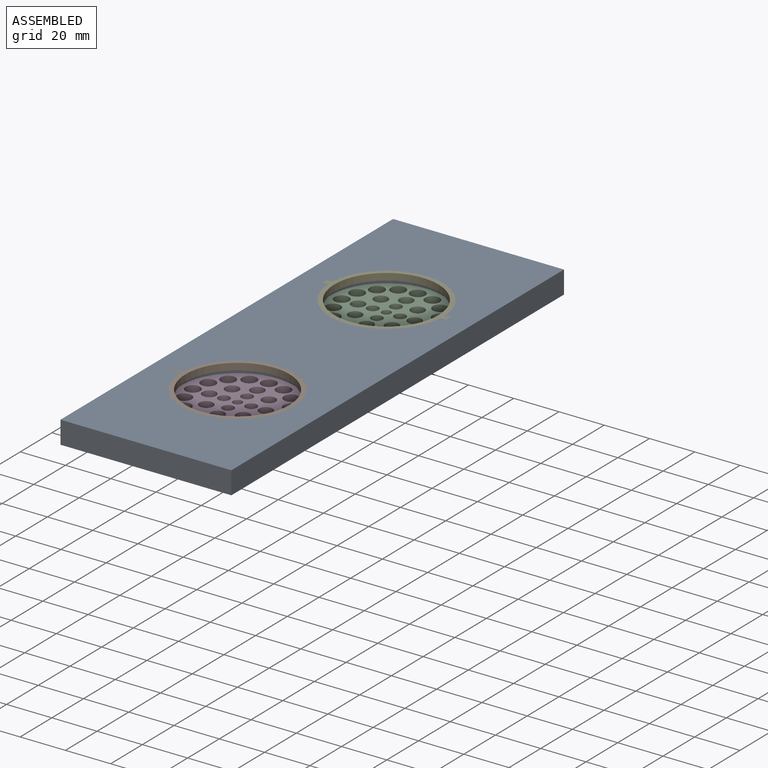
[diagram: assembled view]
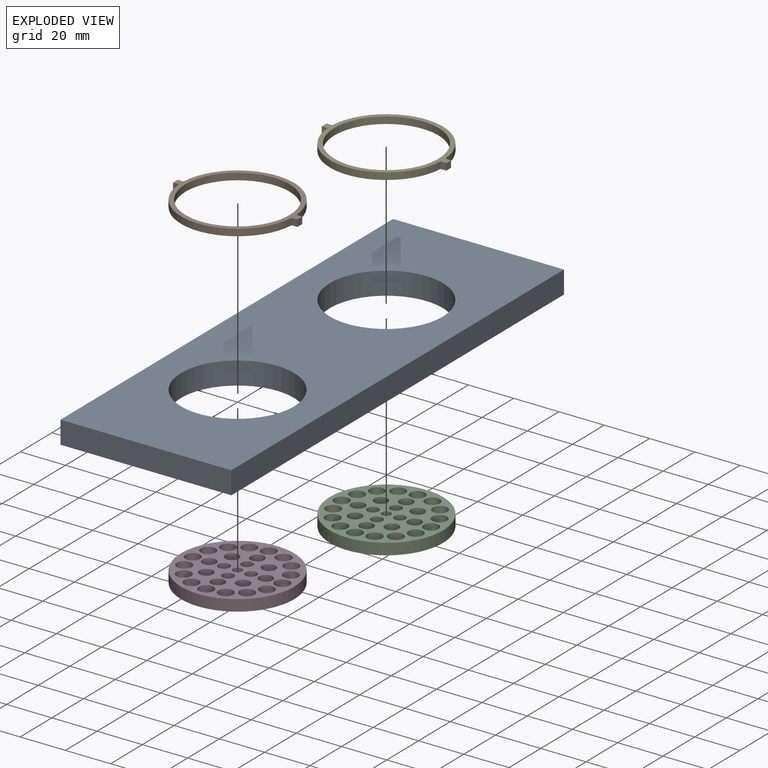
[diagram: exploded view]
GUIDED TOUR — MATED ASSEMBLY (Onshape document 9141ec784afdaae85d738d30, AutoMate assembly 9141ec784afdaae85d738d30_899313a670194cf381c82373_c76228d51991e67c0eaed0d9_default)

This assembly has 5 components, labeled P0..P4 below (a component is one placed occurrence of a part; the same part can appear more than once), held together by 2 mates. A mate is a constraint between two components; its type names the relative motion it leaves free:
  CYLINDRICAL — leaves both rotation about and translation along the listed axis free,
  FASTENED — locks the two components together rigidly (no relative motion).
Axis/direction vectors are unit vectors and 'through' points are millimeter coordinates, both in the assembly's world frame.

MATES
  1. CYLINDRICAL "Cylindrical 2": P3 <-> P0, axis (0.000, 0.000, -1.000) through (-170.78, 4.06, 86.99) mm
  2. FASTENED "Fastened 1": P0 <-> P2, direction (0.000, 0.000, -1.000) through (-170.78, 97.98, 86.99) mm

ASSEMBLY ORDER
  1. P0 — the base component [order heuristic]
  2. P2 — core [order heuristic]
  3. P3 — core [order heuristic]
  4. P4 [order verified]
  5. P1 [order verified]
(P1, P4 verified with a relaxed clearance tolerance: the source model stores slight part interference there.)
Order-tag legend:
  [order verified] — this step's position reverses a verified removal order: the component was checked to insert without passing through the ones already placed.
  [order heuristic] — the first 3 components form the assembly's core: parts whose collision-free extraction could not be verified, listed in mate-graph order.

Of the 5 components, 5 carry the full construction recipe — the FeatureScript program that regenerates the part's solid from scratch; the rest are supplied as boundary geometry only.
Each toured component is shown spotlighted twice — in the assembled view, then in the exploded view, where a leader line traces a displaced component back to its assembled socket (saturated green if recipe-attached, orange if geometry-only; every other component desaturated gray) — followed by its recipe or geometry summary and the mates that hold it.
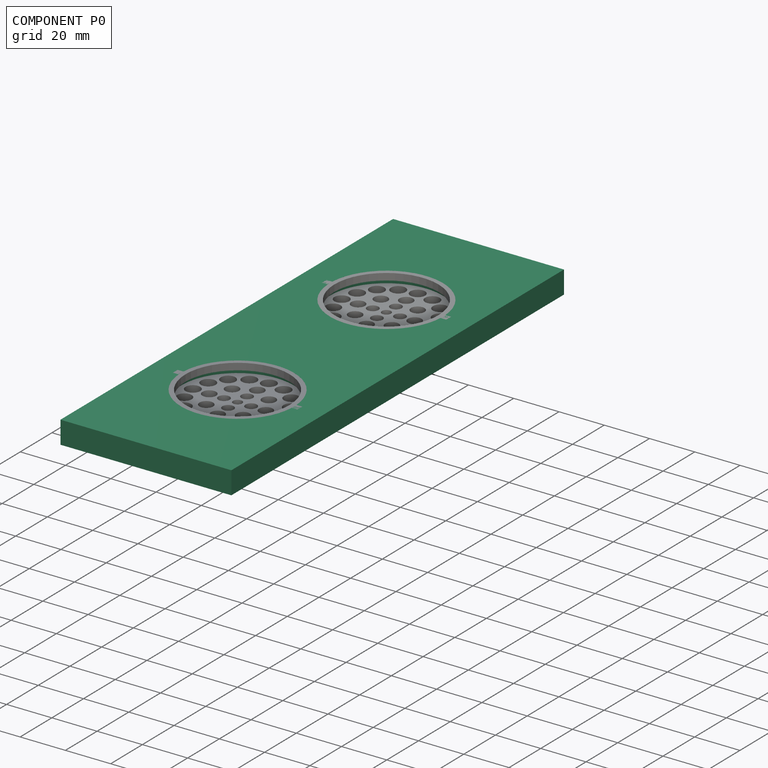
[diagram: component P0 — assembled]
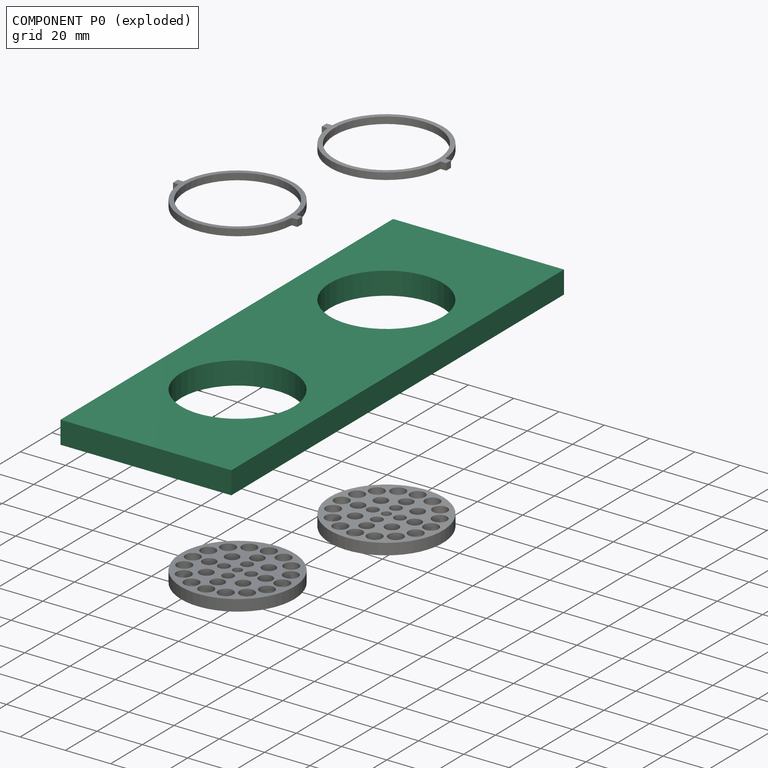
[diagram: component P0 — exploded]
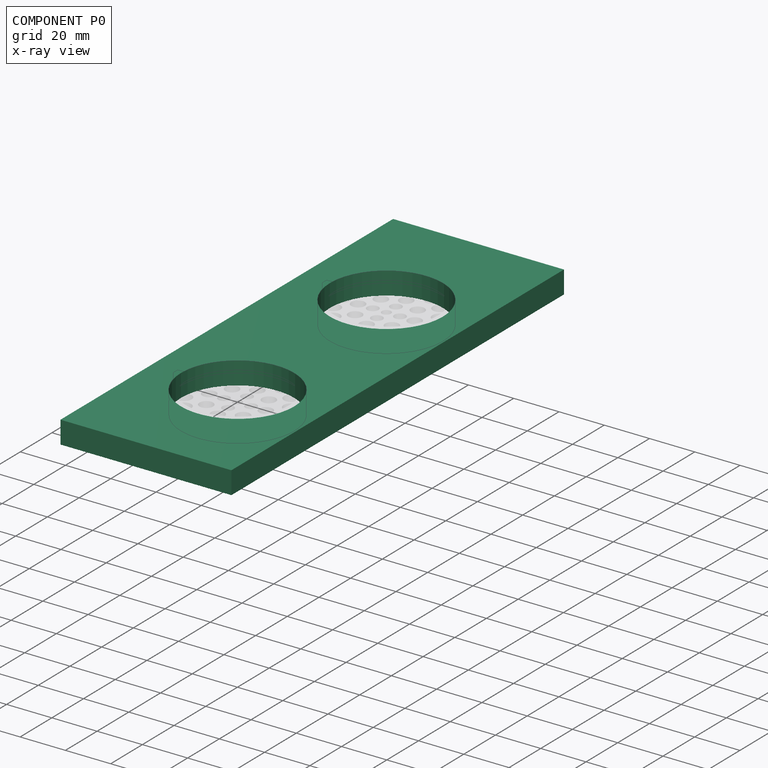
[diagram: component P0 — x-ray view]
COMPONENT P0 — recipe-attached (CADFS 00136937, mesh-verified: the recipe's output STEP matches this component's geometry to below the mesh-comparison resolution (tessellation chordal tolerance ~0.335 mm)).
Held by: CYLINDRICAL mate "Cylindrical 2" to P3; FASTENED mate "Fastened 1" to P2.
Construction recipe (FeatureScript — the CAD program that rebuilds this solid; sketch coordinates are in the units given by the * unit suffixes, e.g. mm):

FeatureScript 1511;
import(path : "onshape/std/geometry.fs", version : "1511.0");
import(path : "onshape/std/common.fs", version : "1511.0");
const mm = millimeter;
const VERTEX = EntityType.VERTEX;
const EDGE = EntityType.EDGE;
const FACE = EntityType.FACE;
const BODY = EntityType.BODY;
function v(x, y){return vector(x, y);}
function OD(order){return orderDisambiguation(order);}
function OSD(set){return originalSetDisambiguation(set);}
function TD(topology){return topologyDisambiguation(topology);}
function TDD(query){return trueDependencyDisambiguation(query);}
function sQuery(a, b, c) {return sketchEntityQuery(a, b, c);}

annotation { "Feature Type Name" : "Feature", "Feature Type Description" : "" }
export const myFeature = defineFeature(function(context is Context, id is Id, definition is map)
    precondition{}
    {
        {
            var Q0;
            Q0=qCreatedBy(makeId("Top.planeOp"),FACE);
            var sketch = newSketch(context, id + "F0", { "sketchPlane" : qUnion([Q0])});
            skLineSegment(sketch, "E0.bottom", {"start": v(37.75, -104.94) * mm, "end": v(-37.75, -104.94) * mm});
            skLineSegment(sketch, "E0.top", {"start": v(37.75, 104.94) * mm, "end": v(-37.75, 104.94) * mm});
            skLineSegment(sketch, "E0.left", {"start": v(37.75, -104.94) * mm, "end": v(37.75, 104.94) * mm});
            skLineSegment(sketch, "E0.right", {"start": v(-37.75, -104.94) * mm, "end": v(-37.75, 104.94) * mm});
            skPoint(sketch, "E0.middle", {"position": v(0, 0) * mm});
            skCircle(sketch, "E1", {"center": v(0, 46.82) * mm, "radius": 25 * mm});
            skCircle(sketch, "E2", {"center": v(0, -47.1) * mm, "radius": 25 * mm});
            skLineSegment(sketch, "E3.bottom", {"start": v(27.5, 45.32) * mm, "end": v(-27.5, 45.32) * mm});
            skLineSegment(sketch, "E3.top", {"start": v(27.5, 48.32) * mm, "end": v(-27.5, 48.32) * mm});
            skLineSegment(sketch, "E3.left", {"start": v(27.5, 45.32) * mm, "end": v(27.5, 48.32) * mm});
            skLineSegment(sketch, "E3.right", {"start": v(-27.5, 45.32) * mm, "end": v(-27.5, 48.32) * mm});
            skLineSegment(sketch, "E4.bottom", {"start": v(27.5, -48.6) * mm, "end": v(-27.5, -48.6) * mm});
            skLineSegment(sketch, "E4.top", {"start": v(27.5, -45.6) * mm, "end": v(-27.5, -45.6) * mm});
            skLineSegment(sketch, "E4.left", {"start": v(27.5, -48.6) * mm, "end": v(27.5, -45.6) * mm});
            skLineSegment(sketch, "E4.right", {"start": v(-27.5, -48.6) * mm, "end": v(-27.5, -45.6) * mm});
            skSolve(sketch);
        }
        {
            var Q0;
            Q0=makeQuery(id+"F0.imprint","IMPRINT",FACE,{"disambiguationData":[TD([[makeQuery(id+"F0.imprint","IMPRINT",EDGE,{"derivedFrom":sQuery(id+"F0.wireOp",EDGE,"E0.bottom")}),-1.0]])]});
            var Q1;
            {var subQ5=sQuery(id+"F0.wireOp",EDGE,"E4.left");Q1=makeQuery(id+"F0.imprint","IMPRINT",FACE,{"disambiguationData":[TD([[makeQuery(id+"F0.imprint","IMPRINT",EDGE,{"derivedFrom":subQ5}),1.0]])]});}
            var Q2;
            {var subQ5=sQuery(id+"F0.wireOp",EDGE,"E4.right");Q2=makeQuery(id+"F0.imprint","IMPRINT",FACE,{"disambiguationData":[TD([[makeQuery(id+"F0.imprint","IMPRINT",EDGE,{"derivedFrom":subQ5}),-1.0]])]});}
            var Q3;
            {var subQ5=sQuery(id+"F0.wireOp",EDGE,"E3.right");Q3=makeQuery(id+"F0.imprint","IMPRINT",FACE,{"disambiguationData":[TD([[makeQuery(id+"F0.imprint","IMPRINT",EDGE,{"derivedFrom":subQ5}),-1.0]])]});}
            var Q4;
            {var subQ5=sQuery(id+"F0.wireOp",EDGE,"E3.left");Q4=makeQuery(id+"F0.imprint","IMPRINT",FACE,{"disambiguationData":[TD([[makeQuery(id+"F0.imprint","IMPRINT",EDGE,{"derivedFrom":subQ5}),1.0]])]});}
            extrude(context, id + "F1", {"entities" : qUnion([Q0, Q1, Q2, Q3, Q4]), "depth" : 10 * mm});
        }
    });
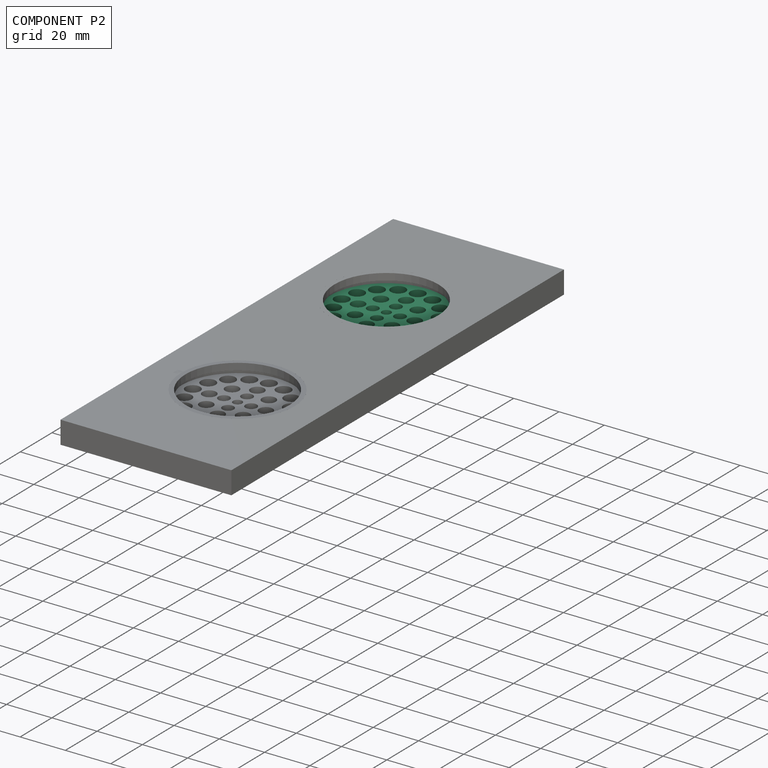
[diagram: component P2 — assembled]
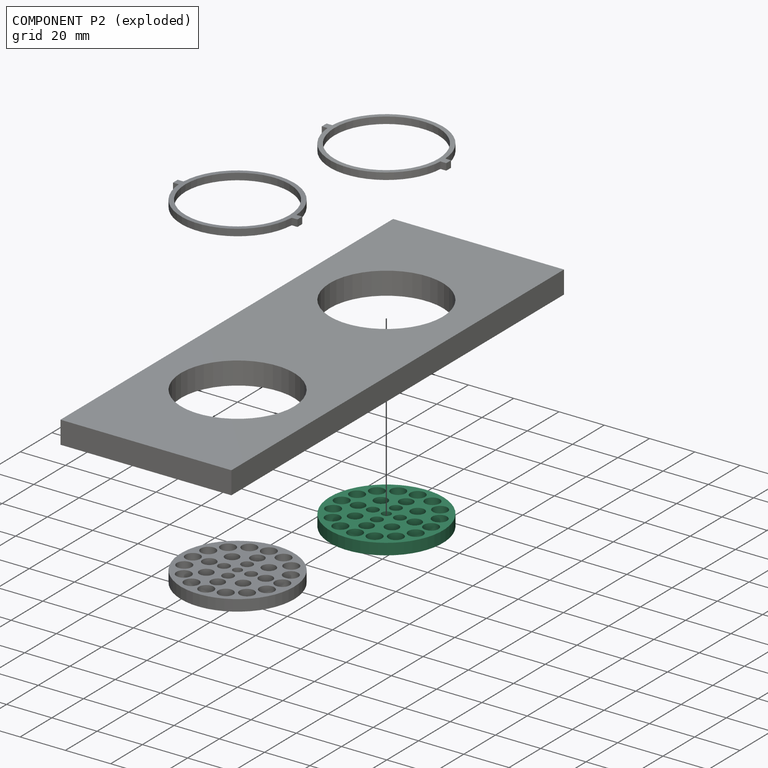
[diagram: component P2 — exploded]
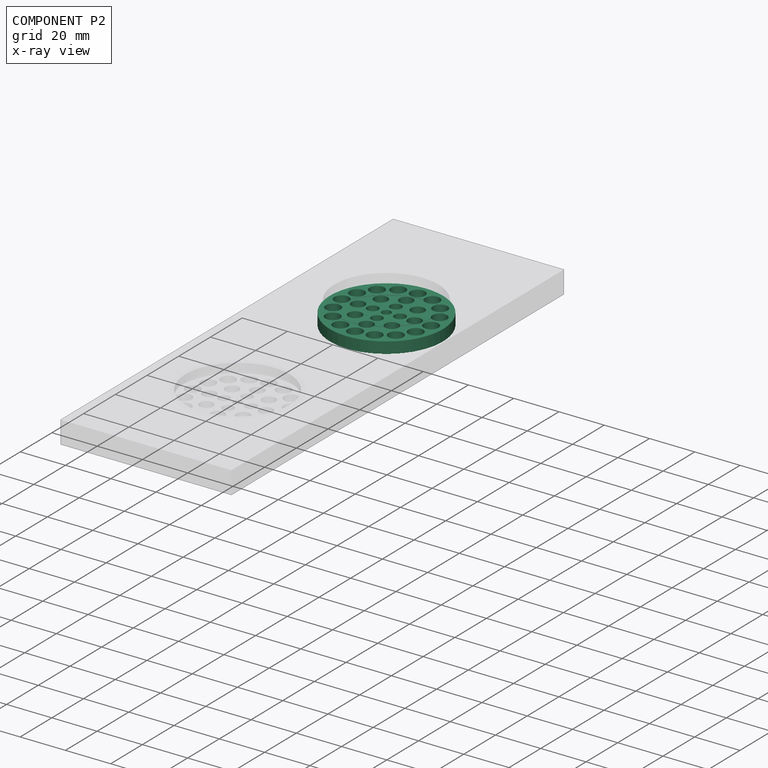
[diagram: component P2 — x-ray view]
COMPONENT P2 — recipe-attached (CADFS 00136934, mesh-verified: the recipe's output STEP matches this component's geometry to below the mesh-comparison resolution (tessellation chordal tolerance ~0.106 mm)).
Held by: FASTENED mate "Fastened 1" to P0.
Construction recipe (FeatureScript — the CAD program that rebuilds this solid; sketch coordinates are in the units given by the * unit suffixes, e.g. mm):

FeatureScript 1511;
import(path : "onshape/std/geometry.fs", version : "1511.0");
import(path : "onshape/std/common.fs", version : "1511.0");
const mm = millimeter;
const VERTEX = EntityType.VERTEX;
const EDGE = EntityType.EDGE;
const FACE = EntityType.FACE;
const BODY = EntityType.BODY;
function v(x, y){return vector(x, y);}
function OD(order){return orderDisambiguation(order);}
function OSD(set){return originalSetDisambiguation(set);}
function TD(topology){return topologyDisambiguation(topology);}
function TDD(query){return trueDependencyDisambiguation(query);}
function sQuery(a, b, c) {return sketchEntityQuery(a, b, c);}

annotation { "Feature Type Name" : "Feature", "Feature Type Description" : "" }
export const myFeature = defineFeature(function(context is Context, id is Id, definition is map)
    precondition{}
    {
        {
            var Q0;
            Q0=qCreatedBy(makeId("Top.planeOp"),FACE);
            var sketch = newSketch(context, id + "F0", { "sketchPlane" : qUnion([Q0])});
            skCircle(sketch, "E0", {"center": v(0, 0) * mm, "radius": 25 * mm});
            skCircle(sketch, "E1", {"center": v(0, 19.75) * mm, "radius": 3.25 * mm});
            skCircle(sketch, "E2", {"center": v(0, 12.5) * mm, "radius": 3 * mm});
            skCircle(sketch, "E3", {"center": v(0, 6) * mm, "radius": 2.5 * mm});
            skCircle(sketch, "E4", {"center": v(0, 0) * mm, "radius": 2 * mm});
            skCircle(sketch, "E5", {"center": v(6, 0) * mm, "radius": 2.5 * mm});
            skCircle(sketch, "E6", {"center": v(12.5, 0) * mm, "radius": 3 * mm});
            skCircle(sketch, "E7", {"center": v(19.75, 0) * mm, "radius": 3.25 * mm});
            skCircle(sketch, "E8", {"center": v(0, -6) * mm, "radius": 2.5 * mm});
            skCircle(sketch, "E9", {"center": v(0, -12.5) * mm, "radius": 3 * mm});
            skCircle(sketch, "E10", {"center": v(0, -19.75) * mm, "radius": 3.25 * mm});
            skCircle(sketch, "E11", {"center": v(-6, 0) * mm, "radius": 2.5 * mm});
            skCircle(sketch, "E12", {"center": v(-12.5, 0) * mm, "radius": 3 * mm});
            skCircle(sketch, "E13", {"center": v(-19.75, 0) * mm, "radius": 3.25 * mm});
            skCircle(sketch, "E14", {"center": v(13.97, 13.97) * mm, "radius": 3.25 * mm});
            skCircle(sketch, "E15", {"center": v(-13.97, 13.97) * mm, "radius": 3.25 * mm});
            skCircle(sketch, "E16", {"center": v(-13.97, -13.97) * mm, "radius": 3.25 * mm});
            skCircle(sketch, "E17", {"center": v(13.97, -13.97) * mm, "radius": 3.25 * mm});
            skCircle(sketch, "E18", {"center": v(8.13, -8.13) * mm, "radius": 3 * mm});
            skCircle(sketch, "E19", {"center": v(8.13, 8.13) * mm, "radius": 3 * mm});
            skCircle(sketch, "E20", {"center": v(-8.13, 8.13) * mm, "radius": 3 * mm});
            skCircle(sketch, "E21", {"center": v(-8.13, -8.13) * mm, "radius": 3 * mm});
            skCircle(sketch, "E22", {"center": v(-18.25, 7.56) * mm, "radius": 3.25 * mm});
            skCircle(sketch, "E23", {"center": v(-7.56, 18.25) * mm, "radius": 3.25 * mm});
            skCircle(sketch, "E24", {"center": v(7.56, 18.25) * mm, "radius": 3.25 * mm});
            skCircle(sketch, "E25", {"center": v(-18.25, -7.56) * mm, "radius": 3.25 * mm});
            skCircle(sketch, "E26", {"center": v(7.56, -18.25) * mm, "radius": 3.25 * mm});
            skCircle(sketch, "E27", {"center": v(-7.56, -18.25) * mm, "radius": 3.25 * mm});
            skCircle(sketch, "E28", {"center": v(18.25, -7.56) * mm, "radius": 3.25 * mm});
            skCircle(sketch, "E29", {"center": v(18.25, 7.56) * mm, "radius": 3.25 * mm});
            skSolve(sketch);
        }
        {
            var Q0;
            Q0=makeQuery(id+"F0.imprint","IMPRINT",FACE,{"disambiguationData":[TD([[makeQuery(id+"F0.imprint","IMPRINT",EDGE,{"derivedFrom":sQuery(id+"F0.wireOp",EDGE,"E0")}),1.0]])]});
            extrude(context, id + "F1", {"entities" : qUnion([Q0]), "depth" : 5 * mm});
        }
    });
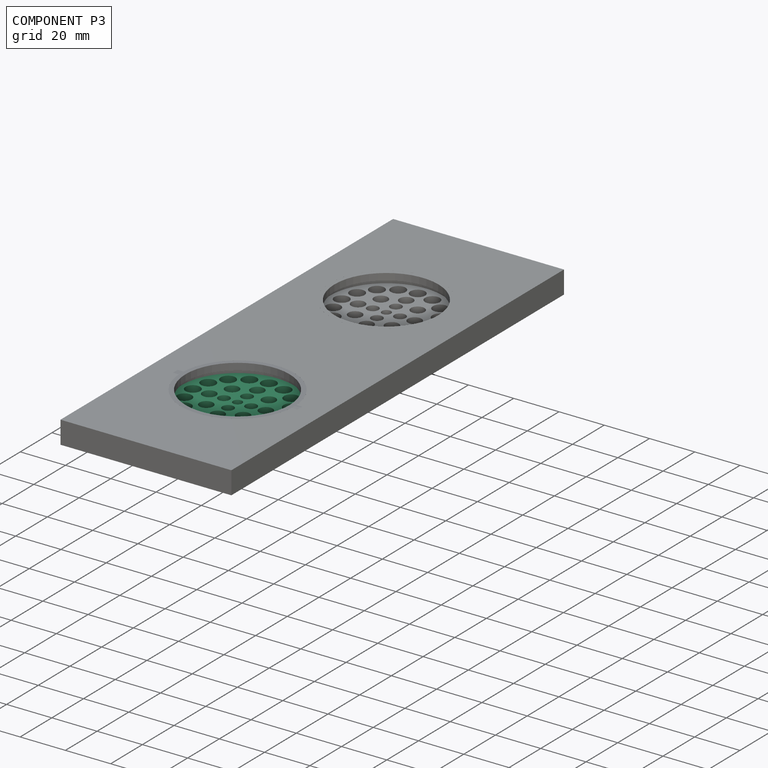
[diagram: component P3 — assembled]
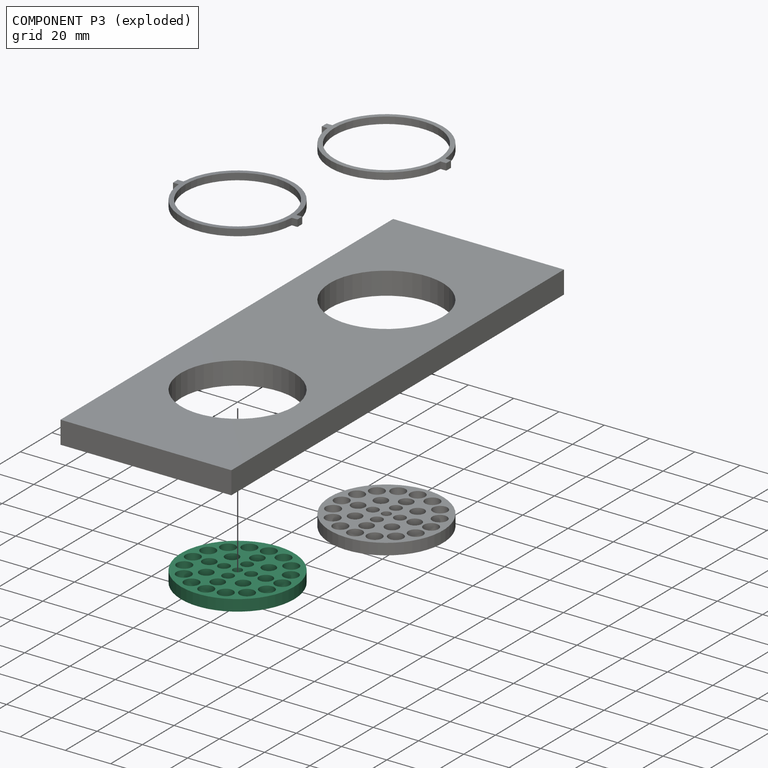
[diagram: component P3 — exploded]
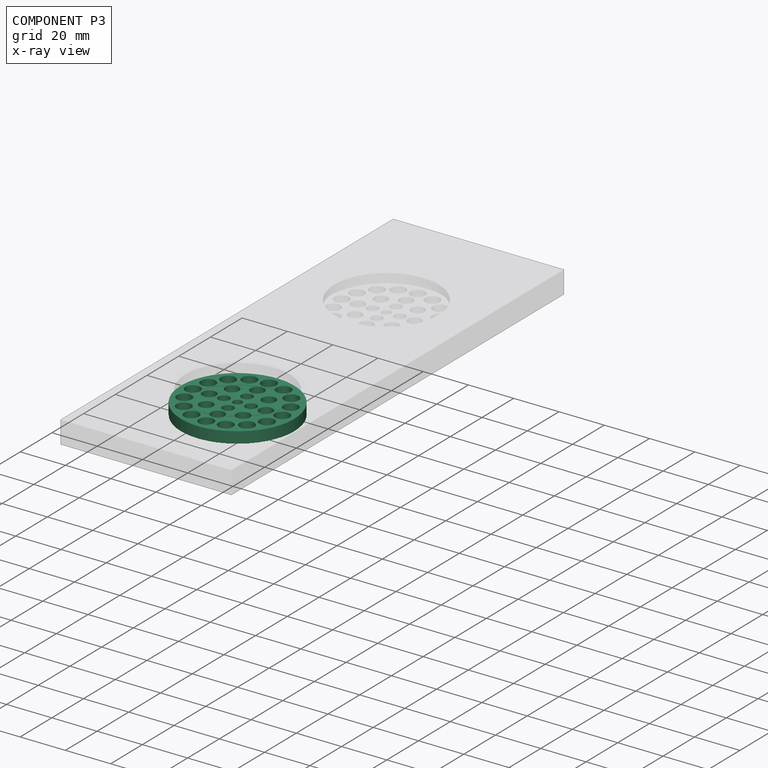
[diagram: component P3 — x-ray view]
COMPONENT P3 — same part as P2 (CADFS 00136934); its construction recipe is shown at P2.
Held by: CYLINDRICAL mate "Cylindrical 2" to P0.
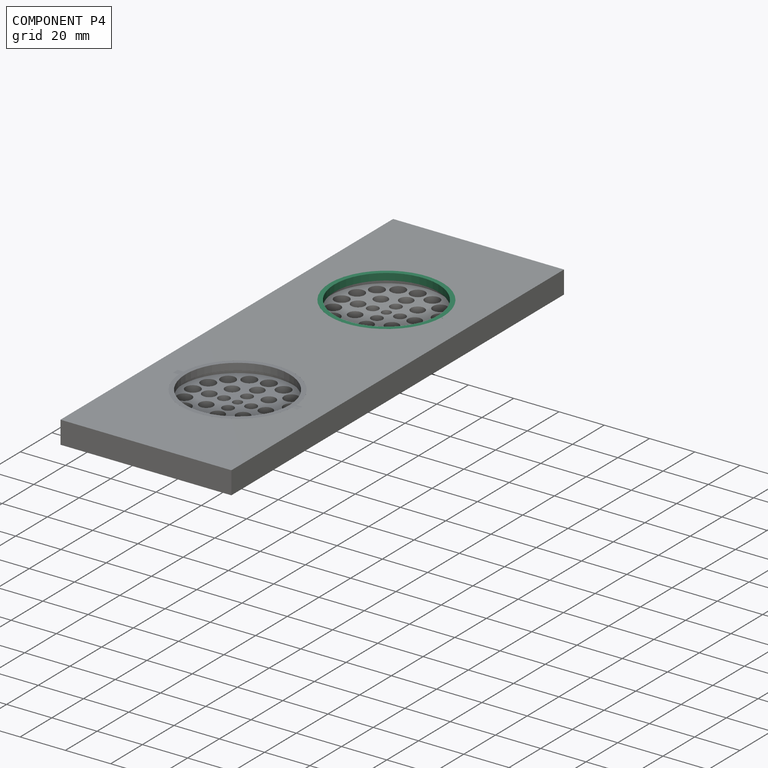
[diagram: component P4 — assembled]
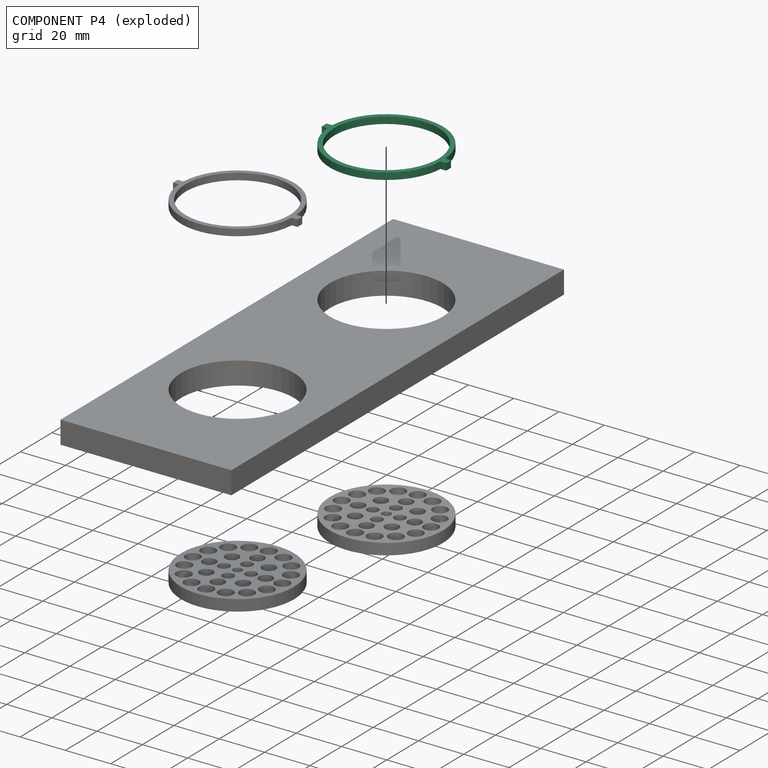
[diagram: component P4 — exploded]
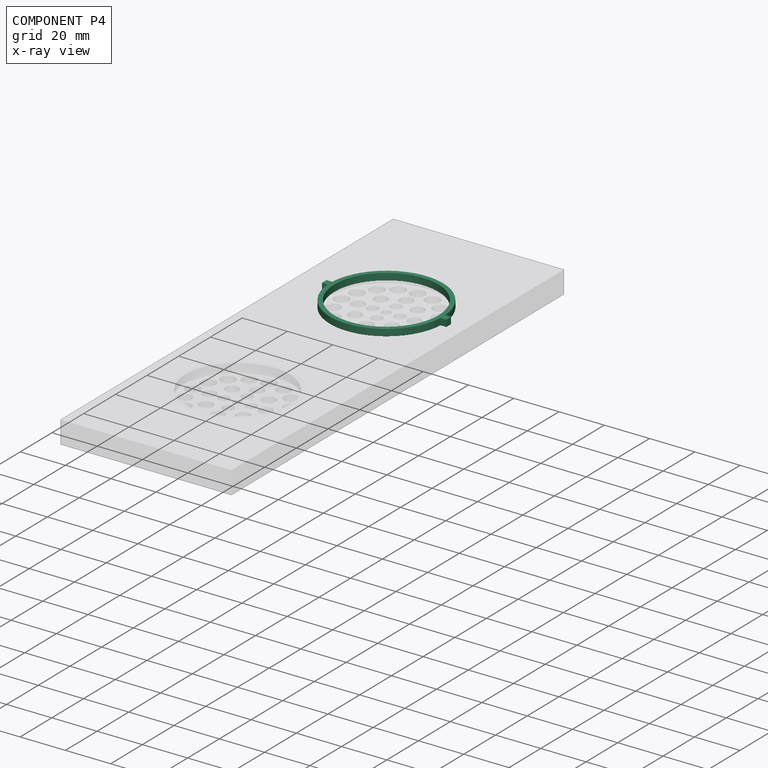
[diagram: component P4 — x-ray view]
COMPONENT P4 — same part as P1 (CADFS 00136936); its construction recipe is shown at P1.
Held by: no mates (free).
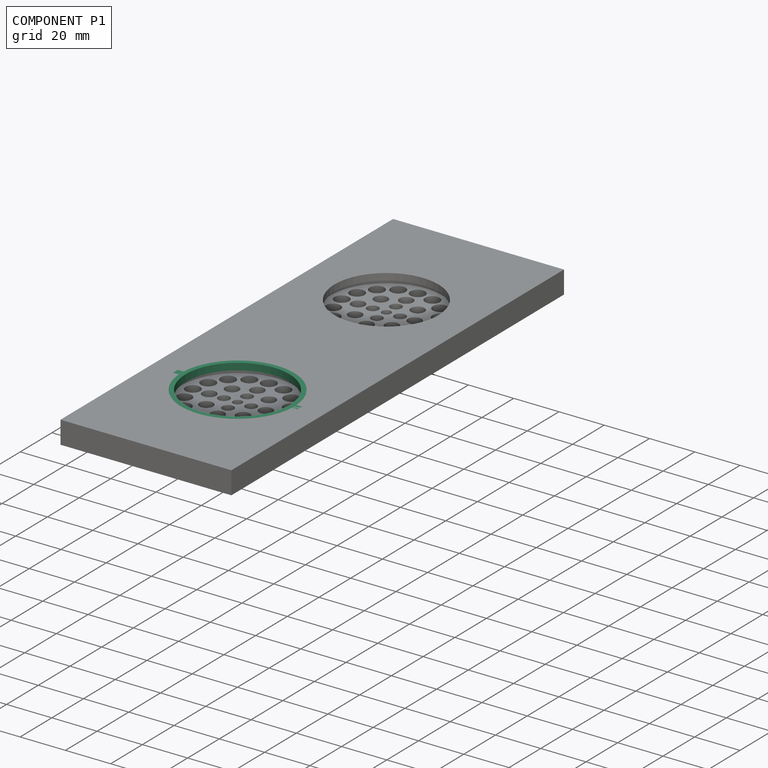
[diagram: component P1 — assembled]
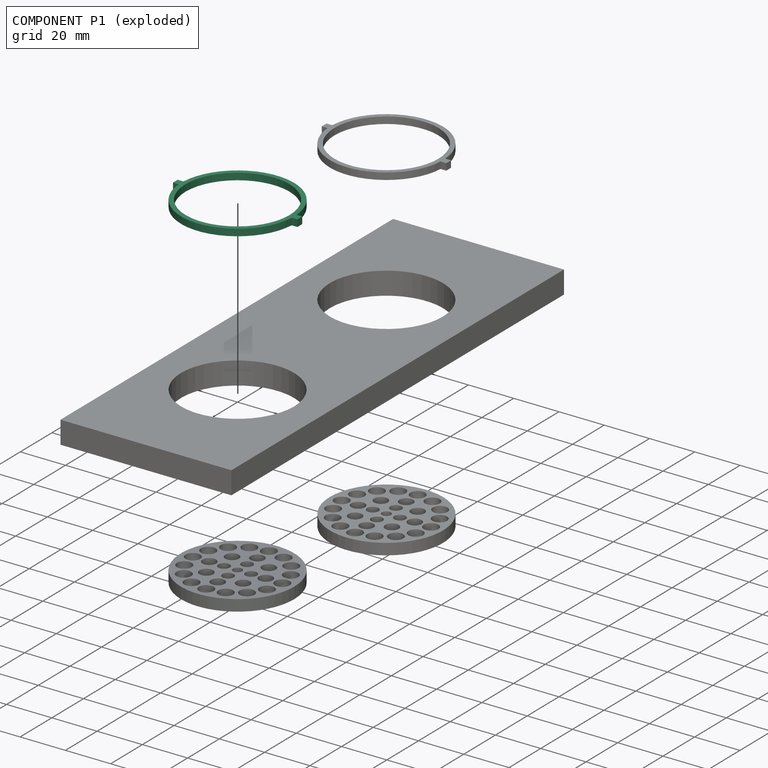
[diagram: component P1 — exploded]
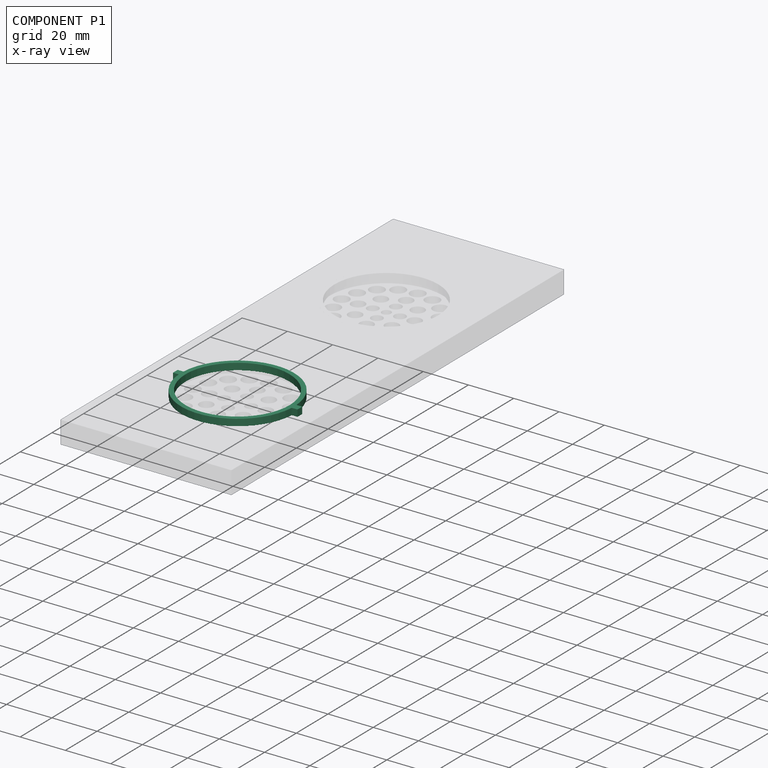
[diagram: component P1 — x-ray view]
COMPONENT P1 — recipe-attached (CADFS 00136936, mesh-verified: the recipe's output STEP matches this component's geometry to below the mesh-comparison resolution (tessellation chordal tolerance ~0.111 mm)).
Held by: no mates (free).
Construction recipe (FeatureScript — the CAD program that rebuilds this solid; sketch coordinates are in the units given by the * unit suffixes, e.g. mm):

FeatureScript 1511;
import(path : "onshape/std/geometry.fs", version : "1511.0");
import(path : "onshape/std/common.fs", version : "1511.0");
const mm = millimeter;
const VERTEX = EntityType.VERTEX;
const EDGE = EntityType.EDGE;
const FACE = EntityType.FACE;
const BODY = EntityType.BODY;
function v(x, y){return vector(x, y);}
function OD(order){return orderDisambiguation(order);}
function OSD(set){return originalSetDisambiguation(set);}
function TD(topology){return topologyDisambiguation(topology);}
function TDD(query){return trueDependencyDisambiguation(query);}
function sQuery(a, b, c) {return sketchEntityQuery(a, b, c);}

annotation { "Feature Type Name" : "Feature", "Feature Type Description" : "" }
export const myFeature = defineFeature(function(context is Context, id is Id, definition is map)
    precondition{}
    {
        {
            var Q0;
            Q0=qCreatedBy(makeId("Top.planeOp"),FACE);
            var sketch = newSketch(context, id + "F0", { "sketchPlane" : qUnion([Q0])});
            skCircle(sketch, "E0", {"center": v(0, 0) * mm, "radius": 25 * mm});
            skCircle(sketch, "E1", {"center": v(0, 0) * mm, "radius": 23 * mm});
            skLineSegment(sketch, "E2.bottom", {"start": v(-27.5, -1.5) * mm, "end": v(27.5, -1.5) * mm});
            skLineSegment(sketch, "E2.top", {"start": v(-27.5, 1.5) * mm, "end": v(27.5, 1.5) * mm});
            skLineSegment(sketch, "E2.left", {"start": v(-27.5, -1.5) * mm, "end": v(-27.5, 1.5) * mm});
            skLineSegment(sketch, "E2.right", {"start": v(27.5, -1.5) * mm, "end": v(27.5, 1.5) * mm});
            skSolve(sketch);
        }
        {
            var Q0;
            Q0=makeQuery(id+"F0.imprint","IMPRINT",FACE,{"disambiguationData":[TD([[makeQuery(id+"F0.imprint","IMPRINT",EDGE,{"derivedFrom":sQuery(id+"F0.wireOp",EDGE,"E0")}),1.0]])]});
            var Q1;
            {var subQ5=sQuery(id+"F0.wireOp",EDGE,"E2.right");Q1=makeQuery(id+"F0.imprint","IMPRINT",FACE,{"disambiguationData":[TD([[makeQuery(id+"F0.imprint","IMPRINT",EDGE,{"derivedFrom":subQ5}),1.0]])]});}
            var Q2;
            {var subQ5=sQuery(id+"F0.wireOp",EDGE,"E2.left");Q2=makeQuery(id+"F0.imprint","IMPRINT",FACE,{"disambiguationData":[TD([[makeQuery(id+"F0.imprint","IMPRINT",EDGE,{"derivedFrom":subQ5}),-1.0]])]});}
            extrude(context, id + "F1", {"entities" : qUnion([Q0, Q1, Q2]), "depth" : 3 * mm});
        }
    });
PROVENANCE & LICENSES
Assembly (occurrences, transforms, mates, per-part STEP geometry): AutoMate dataset, Zenodo record 7776208, CC0.
Construction recipes: CADFS (HuggingFace VladPyatov/CADFS, CC-BY-4.0, layered over the ABC dataset), FeatureScript reconstruction programs keyed by ABC model id.
Join: ABC meta listings map ABC model id -> Onshape documentId; within a shared document, parts are matched by geometric signature (bounding-box dims + volume at 0.1% relative tolerance, exact B-rep face/solid counts).
Verification: 5 of this assembly's 5 components carry a recipe attachment, and every attachment is mesh-verified: the CADFS STEP and the AutoMate member STEP were compared as meshes in their shared local frame (symmetric sampled-point-to-mesh distance); worst across the 5 attachments: below the mesh-comparison resolution (tessellation chordal tolerance ~0.335 mm) on a 223 mm part.
Renders: orthographic iso camera (az 35 / el 25); the floor grid conveys scale (grid pitch printed in each image; no ruler). In the exploded view each component is displaced by its stored offset vector: the offsets alone carry the explosion direction (mate normal/axis signs are not orientation cues and do not encode it), and separation distances are assigned per mate-chain, not proportionally to assembly-order depth.
